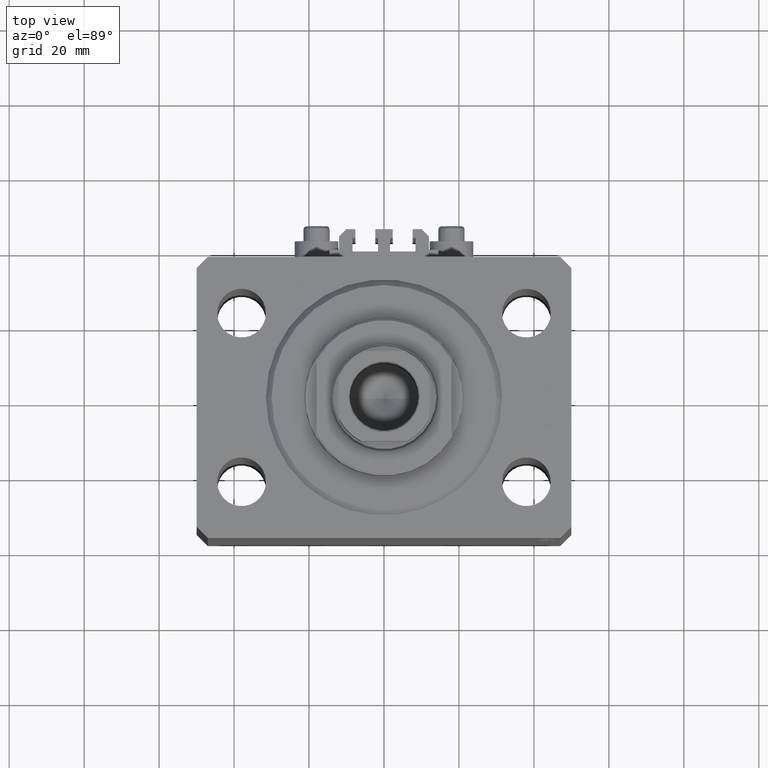
[diagram: clean part render]
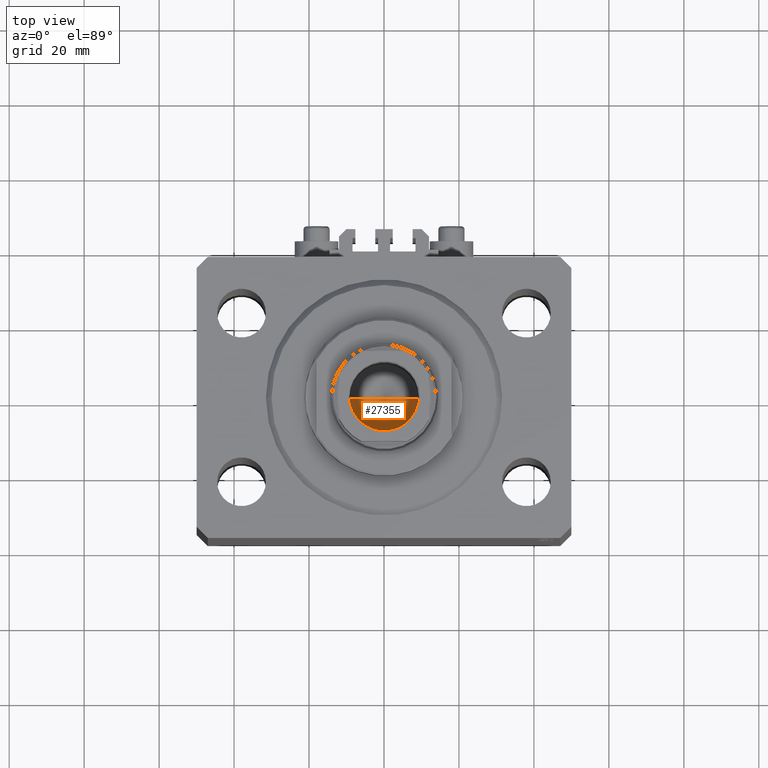
[diagram: same view with one face highlighted and labeled with its STEP entity id]
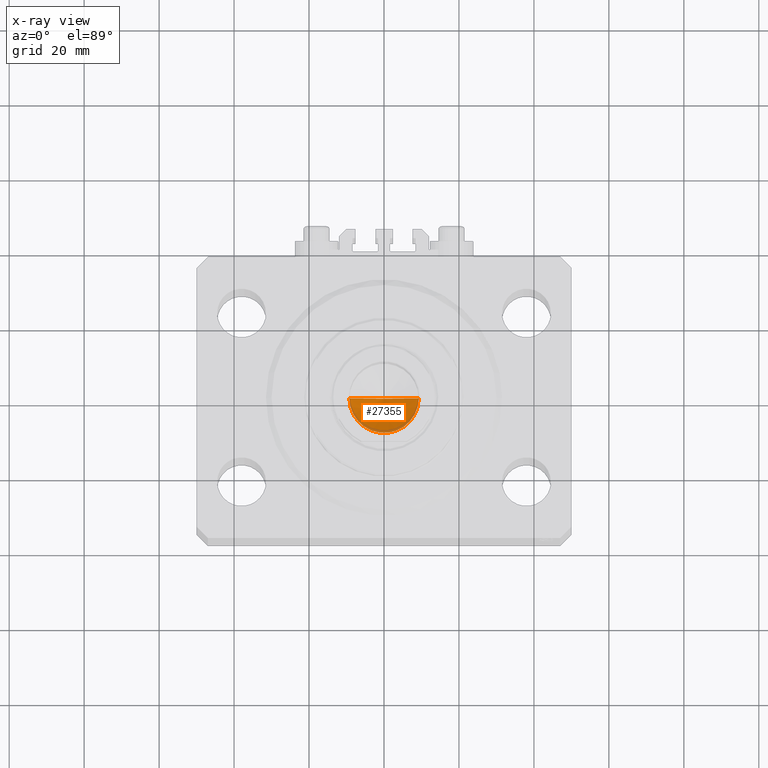
[diagram: x-ray of the same camera — body ghosted, the highlighted face saturated]
A machine part, top view. The second image highlights one B-rep face of the part: STEP entity #27355.
The next image is the same camera in x-ray: the body ghosted, the highlighted face saturated — about 8% of this face is hidden behind the body in this view.
In plain terms, the highlighted conical surface has half-angle 59 deg.
Its self-contained STEP definition (entity closure, byte-faithful):
#2016 = EDGE_CURVE ( 'NONE', #17733, #41537, #3806, .T. ) ;
#3806 = LINE ( 'NONE', #37317, #22605 ) ;
#6382 = ORIENTED_EDGE ( 'NONE', *, *, #14853, .T. ) ;
#9093 = CARTESIAN_POINT ( 'NONE',  ( -9.249999999999994671, 1.132798289211300909E-15, 98.09999999999999432 ) ) ;
#10704 = ORIENTED_EDGE ( 'NONE', *, *, #2016, .F. ) ;
#12200 = CARTESIAN_POINT ( 'NONE',  ( -9.249999999999994671, 1.132798289211300909E-15, 98.09999999999999432 ) ) ;
#13661 = FACE_OUTER_BOUND ( 'NONE', #38811, .T. ) ;
#14853 = EDGE_CURVE ( 'NONE', #17365, #41537, #35978, .T. ) ;
#17340 = ORIENTED_EDGE ( 'NONE', *, *, #22231, .T. ) ;
#17365 = VERTEX_POINT ( 'NONE', #9093 ) ;
#17733 = VERTEX_POINT ( 'NONE', #39781 ) ;
#17820 = AXIS2_PLACEMENT_3D ( 'NONE', #24906, #35672, #20835 ) ;
#18396 = DIRECTION ( 'NONE',  ( 0.8571673007021117785, 0.000000000000000000, 0.5150380749100550437 ) ) ;
#19846 = DIRECTION ( 'NONE',  ( -0.8571673007021117785, 1.049727191138617956E-16, 0.5150380749100550437 ) ) ;
#20835 = DIRECTION ( 'NONE',  ( 1.000000000000000000, 0.000000000000000000, 0.000000000000000000 ) ) ;
#22231 = EDGE_CURVE ( 'NONE', #17733, #17365, #30394, .T. ) ;
#22605 = VECTOR ( 'NONE', #18396, 1000.000000000000000 ) ;
#24906 = CARTESIAN_POINT ( 'NONE',  ( 0.000000000000000000, 0.000000000000000000, 98.09999999999999432 ) ) ;
#27355 = ADVANCED_FACE ( 'NONE', ( #13661 ), #27776, .F. ) ;
#27776 = CONICAL_SURFACE ( 'NONE', #17820, 9.249999999999994671, 1.029744258676653423 ) ;
#30394 = LINE ( 'NONE', #12200, #35876 ) ;
#30621 = CARTESIAN_POINT ( 'NONE',  ( 0.000000000000000000, 0.000000000000000000, 98.09999999999999432 ) ) ;
#32538 = CARTESIAN_POINT ( 'NONE',  ( 9.249999999999994671, 0.000000000000000000, 98.09999999999999432 ) ) ;
#35672 = DIRECTION ( 'NONE',  ( -0.000000000000000000, -0.000000000000000000, 1.000000000000000000 ) ) ;
#35876 = VECTOR ( 'NONE', #19846, 1000.000000000000000 ) ;
#35978 = CIRCLE ( 'NONE', #42106, 9.249999999999994671 ) ;
#37317 = CARTESIAN_POINT ( 'NONE',  ( 9.249999999999994671, 0.000000000000000000, 98.09999999999999432 ) ) ;
#38052 = DIRECTION ( 'NONE',  ( 1.000000000000000000, 0.000000000000000000, 0.000000000000000000 ) ) ;
#38811 = EDGE_LOOP ( 'NONE', ( #10704, #17340, #6382 ) ) ;
#39781 = CARTESIAN_POINT ( 'NONE',  ( -1.046994375366439223E-14, 0.000000000000000000, 92.54203927399505858 ) ) ;
#41537 = VERTEX_POINT ( 'NONE', #32538 ) ;
#42106 = AXIS2_PLACEMENT_3D ( 'NONE', #30621, #45226, #38052 ) ;
#45226 = DIRECTION ( 'NONE',  ( -0.000000000000000000, -0.000000000000000000, 1.000000000000000000 ) ) ;